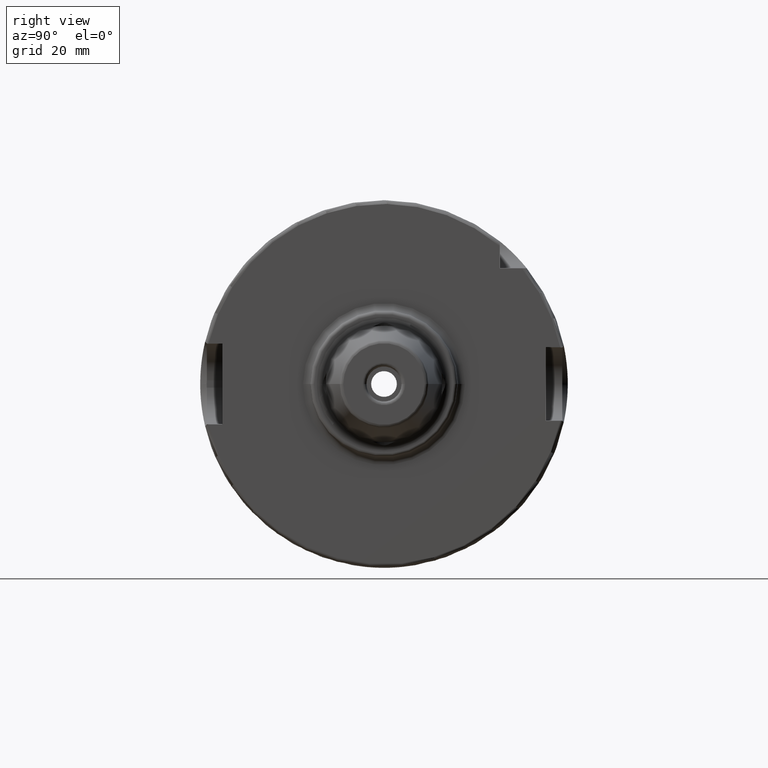
[diagram: clean part render]
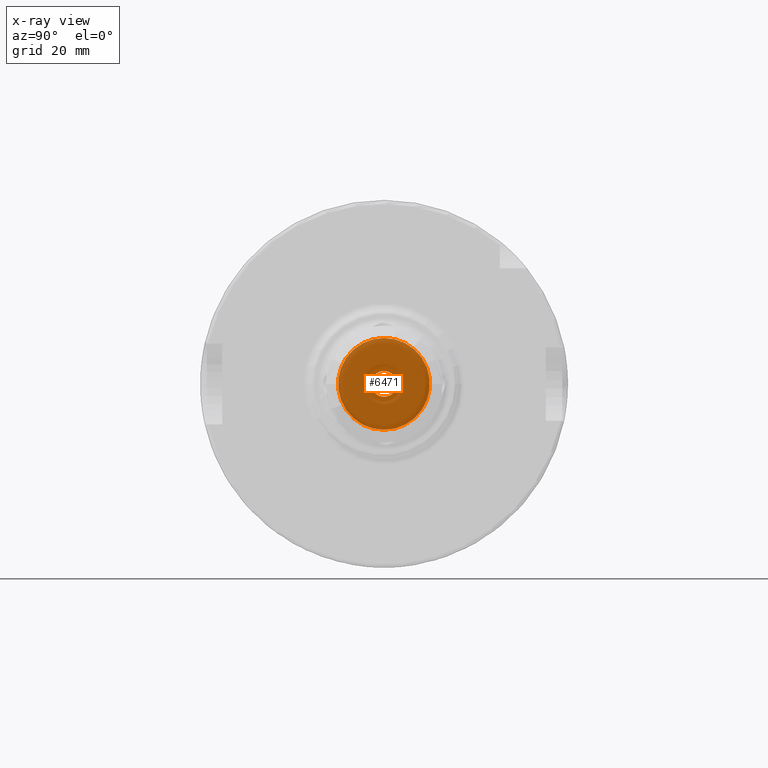
[diagram: x-ray — body ghosted, one internal face saturated and labeled with its STEP entity id]
A machine part, right view, then the same camera in x-ray: the body is ghosted and one INTERNAL B-rep face — a face not visible from any outside direction — is saturated and labeled: STEP entity #6471.
In plain terms, the highlighted planar face has unit normal (1, 0, 0).
Its self-contained STEP definition (entity closure, byte-faithful):
#2759=CARTESIAN_POINT('',(2.85E1,0.E0,0.E0));
#2760=DIRECTION('',(1.E0,0.E0,0.E0));
#2761=DIRECTION('',(0.E0,-1.E0,0.E0));
#2762=AXIS2_PLACEMENT_3D('',#2759,#2760,#2761);
#2764=CARTESIAN_POINT('',(2.85E1,0.E0,0.E0));
#2765=DIRECTION('',(1.E0,0.E0,0.E0));
#2766=DIRECTION('',(0.E0,1.E0,0.E0));
#2767=AXIS2_PLACEMENT_3D('',#2764,#2765,#2766);
#2773=CARTESIAN_POINT('',(2.85E1,0.E0,0.E0));
#2774=DIRECTION('',(-1.E0,0.E0,0.E0));
#2775=DIRECTION('',(0.E0,0.E0,-1.E0));
#2776=AXIS2_PLACEMENT_3D('',#2773,#2774,#2775);
#2782=CARTESIAN_POINT('',(2.85E1,0.E0,0.E0));
#2783=DIRECTION('',(1.E0,0.E0,0.E0));
#2784=DIRECTION('',(0.E0,0.E0,-1.E0));
#2785=AXIS2_PLACEMENT_3D('',#2782,#2783,#2784);
#2945=CARTESIAN_POINT('',(2.85E1,0.E0,-1.25E1));
#2947=VERTEX_POINT('',#2945);
#2949=CARTESIAN_POINT('',(2.85E1,0.E0,1.25E1));
#2951=VERTEX_POINT('',#2949);
#3326=CARTESIAN_POINT('',(2.85E1,-3.5E0,0.E0));
#3327=VERTEX_POINT('',#3326);
#3328=CARTESIAN_POINT('',(2.85E1,3.5E0,0.E0));
#3329=VERTEX_POINT('',#3328);
#6456=CARTESIAN_POINT('',(2.85E1,0.E0,0.E0));
#6457=DIRECTION('',(1.E0,0.E0,0.E0));
#6458=DIRECTION('',(0.E0,0.E0,1.E0));
#6459=AXIS2_PLACEMENT_3D('',#6456,#6457,#6458);
#6460=PLANE('',#6459);
#6462=ORIENTED_EDGE('',*,*,#6461,.F.);
#6464=ORIENTED_EDGE('',*,*,#6463,.T.);
#6465=EDGE_LOOP('',(#6462,#6464));
#6466=FACE_OUTER_BOUND('',#6465,.F.);
#6467=ORIENTED_EDGE('',*,*,#6436,.F.);
#6468=ORIENTED_EDGE('',*,*,#6450,.F.);
#6469=EDGE_LOOP('',(#6467,#6468));
#6470=FACE_BOUND('',#6469,.F.);
#6471=ADVANCED_FACE('',(#6466,#6470),#6460,.F.);
#2763=CIRCLE('',#2762,3.5E0);
#2768=CIRCLE('',#2767,3.5E0);
#2777=CIRCLE('',#2776,1.25E1);
#2786=CIRCLE('',#2785,1.25E1);
#6436=EDGE_CURVE('',#3327,#3329,#2763,.T.);
#6450=EDGE_CURVE('',#3329,#3327,#2768,.T.);
#6461=EDGE_CURVE('',#2947,#2951,#2777,.T.);
#6463=EDGE_CURVE('',#2947,#2951,#2786,.T.);